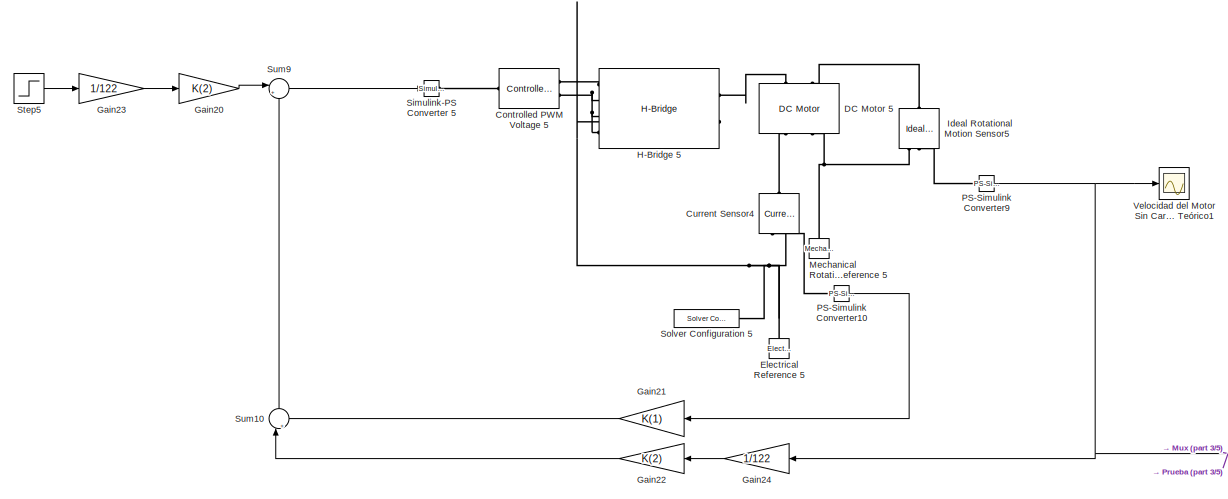
[diagram: root canvas - part 1/5, full width, top band]
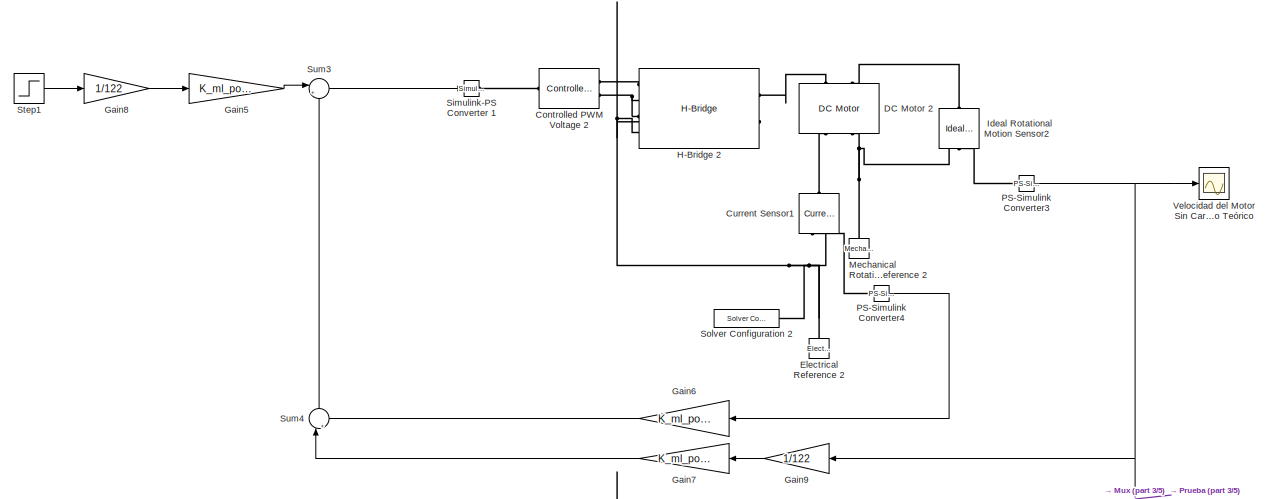
[diagram: root canvas - part 2/5, full width, top band]
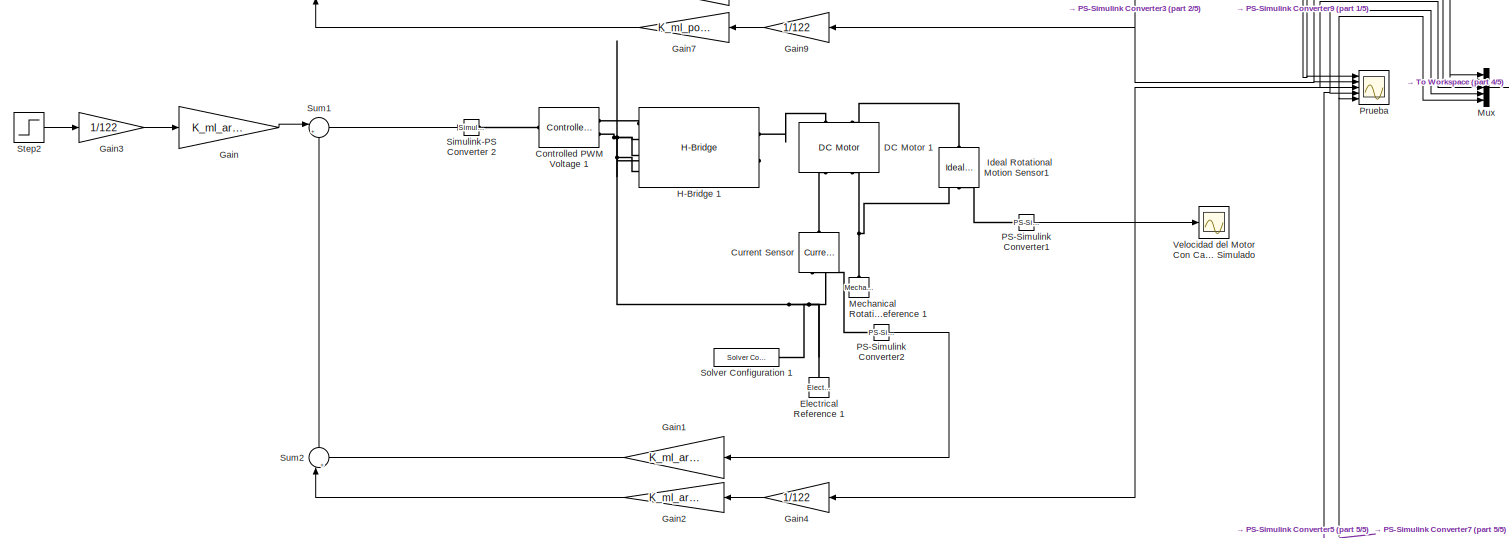
[diagram: root canvas - part 3/5, full width, middle band]
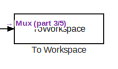
[diagram: root canvas - part 4/5, middle right region]
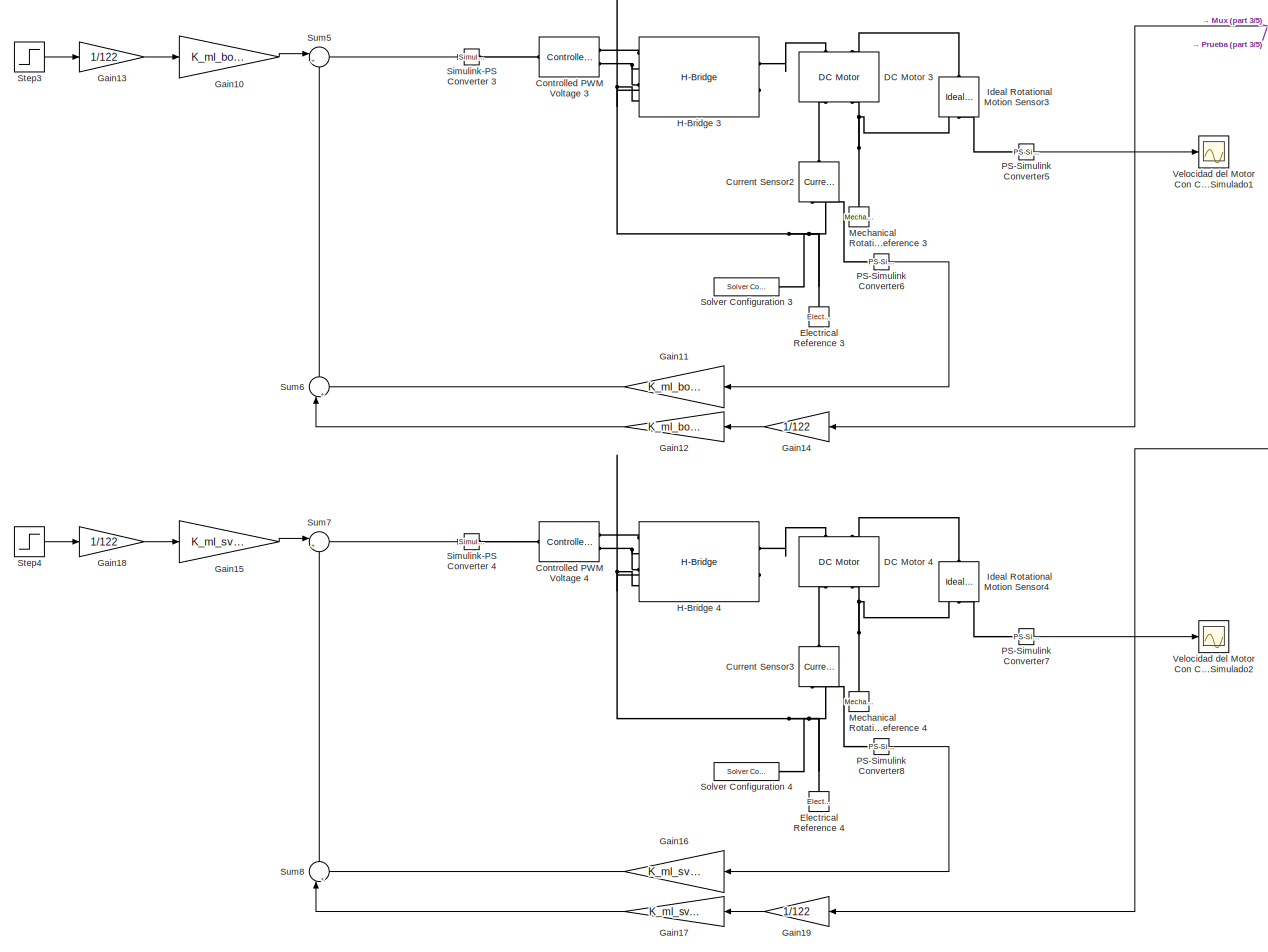
[diagram: root canvas - part 5/5, full width, bottom band]
MODEL slx_1609a7229509
KIND model
CONFIG AbsTol = auto
CONFIG EnableMultiTasking = off
CONFIG FixedStep = auto
CONFIG MaxStep = auto
CONFIG MinStep = auto
CONFIG RelTol = 1e-3
CONFIG SampleTimeConstraint = Unconstrained
CONFIG Solver = VariableStepAuto
CONFIG SolverName = VariableStepAuto
CONFIG StartTime = 0.0
CONFIG StopTime = 0.5
BLOCK [Reference]  Ideal Rotational Motion Sensor1  REF=fl_lib/Mechanical/Mechanical Sensors/Ideal Rotational
Motion Sensor
  NameLocation = right
  Ports = [0, 0, 0, 0, 0, 1, 3]
  SourceBlock = fl_lib/Mechanical/Mechanical Sensors/Ideal Rotational\nMotion Sensor
  SourceProductBaseCode = SS
  SourceType = Ideal Rotational\nMotion Sensor
BLOCK [Reference]  Ideal Rotational Motion Sensor2  REF=fl_lib/Mechanical/Mechanical Sensors/Ideal Rotational
Motion Sensor
  NameLocation = right
  Ports = [0, 0, 0, 0, 0, 1, 3]
  SourceBlock = fl_lib/Mechanical/Mechanical Sensors/Ideal Rotational\nMotion Sensor
  SourceProductBaseCode = SS
  SourceType = Ideal Rotational\nMotion Sensor
BLOCK [Reference]  Ideal Rotational Motion Sensor3  REF=fl_lib/Mechanical/Mechanical Sensors/Ideal Rotational
Motion Sensor
  NameLocation = right
  Ports = [0, 0, 0, 0, 0, 1, 3]
  SourceBlock = fl_lib/Mechanical/Mechanical Sensors/Ideal Rotational\nMotion Sensor
  SourceProductBaseCode = SS
  SourceType = Ideal Rotational\nMotion Sensor
BLOCK [Reference]  Ideal Rotational Motion Sensor4  REF=fl_lib/Mechanical/Mechanical Sensors/Ideal Rotational
Motion Sensor
  NameLocation = right
  Ports = [0, 0, 0, 0, 0, 1, 3]
  SourceBlock = fl_lib/Mechanical/Mechanical Sensors/Ideal Rotational\nMotion Sensor
  SourceProductBaseCode = SS
  SourceType = Ideal Rotational\nMotion Sensor
BLOCK [Reference]  Ideal Rotational Motion Sensor5  REF=fl_lib/Mechanical/Mechanical Sensors/Ideal Rotational
Motion Sensor
  NameLocation = right
  Ports = [0, 0, 0, 0, 0, 1, 3]
  SourceBlock = fl_lib/Mechanical/Mechanical Sensors/Ideal Rotational\nMotion Sensor
  SourceProductBaseCode = SS
  SourceType = Ideal Rotational\nMotion Sensor
BLOCK [Reference]  PS-Simulink Converter1  REF=nesl_utility/PS-Simulink
Converter
  Ports = [0, 1, 0, 0, 0, 1]
  SourceBlock = nesl_utility/PS-Simulink\nConverter
  SourceProductBaseCode = SS
  SourceType = PS-Simulink\nConverter
BLOCK [Reference]  PS-Simulink Converter10  REF=nesl_utility/PS-Simulink
Converter
  Ports = [0, 1, 0, 0, 0, 1]
  SourceBlock = nesl_utility/PS-Simulink\nConverter
  SourceProductBaseCode = SS
  SourceType = PS-Simulink\nConverter
BLOCK [Reference]  PS-Simulink Converter2  REF=nesl_utility/PS-Simulink
Converter
  Ports = [0, 1, 0, 0, 0, 1]
  SourceBlock = nesl_utility/PS-Simulink\nConverter
  SourceProductBaseCode = SS
  SourceType = PS-Simulink\nConverter
BLOCK [Reference]  PS-Simulink Converter3  REF=nesl_utility/PS-Simulink
Converter
  Ports = [0, 1, 0, 0, 0, 1]
  SourceBlock = nesl_utility/PS-Simulink\nConverter
  SourceProductBaseCode = SS
  SourceType = PS-Simulink\nConverter
BLOCK [Reference]  PS-Simulink Converter4  REF=nesl_utility/PS-Simulink
Converter
  Ports = [0, 1, 0, 0, 0, 1]
  SourceBlock = nesl_utility/PS-Simulink\nConverter
  SourceProductBaseCode = SS
  SourceType = PS-Simulink\nConverter
BLOCK [Reference]  PS-Simulink Converter5  REF=nesl_utility/PS-Simulink
Converter
  Ports = [0, 1, 0, 0, 0, 1]
  SourceBlock = nesl_utility/PS-Simulink\nConverter
  SourceProductBaseCode = SS
  SourceType = PS-Simulink\nConverter
BLOCK [Reference]  PS-Simulink Converter6  REF=nesl_utility/PS-Simulink
Converter
  Ports = [0, 1, 0, 0, 0, 1]
  SourceBlock = nesl_utility/PS-Simulink\nConverter
  SourceProductBaseCode = SS
  SourceType = PS-Simulink\nConverter
BLOCK [Reference]  PS-Simulink Converter7  REF=nesl_utility/PS-Simulink
Converter
  Ports = [0, 1, 0, 0, 0, 1]
  SourceBlock = nesl_utility/PS-Simulink\nConverter
  SourceProductBaseCode = SS
  SourceType = PS-Simulink\nConverter
BLOCK [Reference]  PS-Simulink Converter8  REF=nesl_utility/PS-Simulink
Converter
  Ports = [0, 1, 0, 0, 0, 1]
  SourceBlock = nesl_utility/PS-Simulink\nConverter
  SourceProductBaseCode = SS
  SourceType = PS-Simulink\nConverter
BLOCK [Reference]  PS-Simulink Converter9  REF=nesl_utility/PS-Simulink
Converter
  Ports = [0, 1, 0, 0, 0, 1]
  SourceBlock = nesl_utility/PS-Simulink\nConverter
  SourceProductBaseCode = SS
  SourceType = PS-Simulink\nConverter
BLOCK [Reference] Controlled PWM Voltage 1  REF=ee_lib/Integrated Circuits/Controlled PWM
Voltage
  Ports = [0, 0, 0, 0, 0, 1, 2]
  SourceBlock = ee_lib/Integrated Circuits/Controlled PWM\nVoltage
  SourceProductBaseCode = PS
  SourceType = Controlled PWM\nVoltage
BLOCK [Reference] Controlled PWM Voltage 2  REF=ee_lib/Integrated Circuits/Controlled PWM
Voltage
  Ports = [0, 0, 0, 0, 0, 1, 2]
  SourceBlock = ee_lib/Integrated Circuits/Controlled PWM\nVoltage
  SourceProductBaseCode = PS
  SourceType = Controlled PWM\nVoltage
BLOCK [Reference] Controlled PWM Voltage 3  REF=ee_lib/Integrated Circuits/Controlled PWM
Voltage
  Ports = [0, 0, 0, 0, 0, 1, 2]
  SourceBlock = ee_lib/Integrated Circuits/Controlled PWM\nVoltage
  SourceProductBaseCode = PS
  SourceType = Controlled PWM\nVoltage
BLOCK [Reference] Controlled PWM Voltage 4  REF=ee_lib/Integrated Circuits/Controlled PWM
Voltage
  Ports = [0, 0, 0, 0, 0, 1, 2]
  SourceBlock = ee_lib/Integrated Circuits/Controlled PWM\nVoltage
  SourceProductBaseCode = PS
  SourceType = Controlled PWM\nVoltage
BLOCK [Reference] Controlled PWM Voltage 5  REF=ee_lib/Integrated Circuits/Controlled PWM
Voltage
  Ports = [0, 0, 0, 0, 0, 1, 2]
  SourceBlock = ee_lib/Integrated Circuits/Controlled PWM\nVoltage
  SourceProductBaseCode = PS
  SourceType = Controlled PWM\nVoltage
BLOCK [Reference] Current Sensor  REF=fl_lib/Electrical/Electrical Sensors/Current Sensor
  NameLocation = left
  Ports = [0, 0, 0, 0, 0, 1, 2]
  SourceBlock = fl_lib/Electrical/Electrical Sensors/Current Sensor
  SourceProductBaseCode = SS
  SourceType = Current Sensor
BLOCK [Reference] Current Sensor1  REF=fl_lib/Electrical/Electrical Sensors/Current Sensor
  NameLocation = left
  Ports = [0, 0, 0, 0, 0, 1, 2]
  SourceBlock = fl_lib/Electrical/Electrical Sensors/Current Sensor
  SourceProductBaseCode = SS
  SourceType = Current Sensor
BLOCK [Reference] Current Sensor2  REF=fl_lib/Electrical/Electrical Sensors/Current Sensor
  NameLocation = left
  Ports = [0, 0, 0, 0, 0, 1, 2]
  SourceBlock = fl_lib/Electrical/Electrical Sensors/Current Sensor
  SourceProductBaseCode = SS
  SourceType = Current Sensor
BLOCK [Reference] Current Sensor3  REF=fl_lib/Electrical/Electrical Sensors/Current Sensor
  NameLocation = left
  Ports = [0, 0, 0, 0, 0, 1, 2]
  SourceBlock = fl_lib/Electrical/Electrical Sensors/Current Sensor
  SourceProductBaseCode = SS
  SourceType = Current Sensor
BLOCK [Reference] Current Sensor4  REF=fl_lib/Electrical/Electrical Sensors/Current Sensor
  NameLocation = left
  Ports = [0, 0, 0, 0, 0, 1, 2]
  SourceBlock = fl_lib/Electrical/Electrical Sensors/Current Sensor
  SourceProductBaseCode = SS
  SourceType = Current Sensor
BLOCK [Reference] DC Motor 1  REF=ee_lib/Electromechanical/Brushed Motors/DC Motor
  NameLocation = right
  Ports = [0, 0, 0, 0, 0, 2, 2]
  SourceBlock = ee_lib/Electromechanical/Brushed Motors/DC Motor
  SourceProductBaseCode = PS
  SourceType = DC Motor
BLOCK [Reference] DC Motor 2  REF=ee_lib/Electromechanical/Brushed Motors/DC Motor
  NameLocation = right
  Ports = [0, 0, 0, 0, 0, 2, 2]
  SourceBlock = ee_lib/Electromechanical/Brushed Motors/DC Motor
  SourceProductBaseCode = PS
  SourceType = DC Motor
BLOCK [Reference] DC Motor 3  REF=ee_lib/Electromechanical/Brushed Motors/DC Motor
  NameLocation = right
  Ports = [0, 0, 0, 0, 0, 2, 2]
  SourceBlock = ee_lib/Electromechanical/Brushed Motors/DC Motor
  SourceProductBaseCode = PS
  SourceType = DC Motor
BLOCK [Reference] DC Motor 4  REF=ee_lib/Electromechanical/Brushed Motors/DC Motor
  NameLocation = right
  Ports = [0, 0, 0, 0, 0, 2, 2]
  SourceBlock = ee_lib/Electromechanical/Brushed Motors/DC Motor
  SourceProductBaseCode = PS
  SourceType = DC Motor
BLOCK [Reference] DC Motor 5  REF=ee_lib/Electromechanical/Brushed Motors/DC Motor
  NameLocation = right
  Ports = [0, 0, 0, 0, 0, 2, 2]
  SourceBlock = ee_lib/Electromechanical/Brushed Motors/DC Motor
  SourceProductBaseCode = PS
  SourceType = DC Motor
BLOCK [Reference] Electrical Reference 1  REF=fl_lib/Electrical/Electrical Elements/Electrical Reference
  Ports = [0, 0, 0, 0, 0, 1]
  SourceBlock = fl_lib/Electrical/Electrical Elements/Electrical Reference
  SourceProductBaseCode = MT,SS
  SourceType = Electrical Reference
BLOCK [Reference] Electrical Reference 2  REF=fl_lib/Electrical/Electrical Elements/Electrical Reference
  Ports = [0, 0, 0, 0, 0, 1]
  SourceBlock = fl_lib/Electrical/Electrical Elements/Electrical Reference
  SourceProductBaseCode = MT,SS
  SourceType = Electrical Reference
BLOCK [Reference] Electrical Reference 3  REF=fl_lib/Electrical/Electrical Elements/Electrical Reference
  Ports = [0, 0, 0, 0, 0, 1]
  SourceBlock = fl_lib/Electrical/Electrical Elements/Electrical Reference
  SourceProductBaseCode = MT,SS
  SourceType = Electrical Reference
BLOCK [Reference] Electrical Reference 4  REF=fl_lib/Electrical/Electrical Elements/Electrical Reference
  Ports = [0, 0, 0, 0, 0, 1]
  SourceBlock = fl_lib/Electrical/Electrical Elements/Electrical Reference
  SourceProductBaseCode = MT,SS
  SourceType = Electrical Reference
BLOCK [Reference] Electrical Reference 5  REF=fl_lib/Electrical/Electrical Elements/Electrical Reference
  Ports = [0, 0, 0, 0, 0, 1]
  SourceBlock = fl_lib/Electrical/Electrical Elements/Electrical Reference
  SourceProductBaseCode = MT,SS
  SourceType = Electrical Reference
BLOCK [Gain] Gain
  Gain = K_ml_arb(2)
BLOCK [Gain] Gain1
  Gain = K_ml_arb(1)
BLOCK [Gain] Gain10
  Gain = K_ml_bos(2)
BLOCK [Gain] Gain11
  Gain = K_ml_bos(1)
BLOCK [Gain] Gain12
  Gain = K_ml_bos(2)
BLOCK [Gain] Gain13
  Gain = 1/122
BLOCK [Gain] Gain14
  Gain = 1/122
BLOCK [Gain] Gain15
  Gain = K_ml_svr(2)
BLOCK [Gain] Gain16
  Gain = K_ml_svr(1)
BLOCK [Gain] Gain17
  Gain = K_ml_svr(2)
BLOCK [Gain] Gain18
  Gain = 1/122
BLOCK [Gain] Gain19
  Gain = 1/122
BLOCK [Gain] Gain2
  Gain = K_ml_arb(2)
BLOCK [Gain] Gain20
  Gain = K(2)
BLOCK [Gain] Gain21
  Gain = K(1)
BLOCK [Gain] Gain22
  Gain = K(2)
BLOCK [Gain] Gain23
  Gain = 1/122
BLOCK [Gain] Gain24
  Gain = 1/122
BLOCK [Gain] Gain3
  Gain = 1/122
BLOCK [Gain] Gain4
  Gain = 1/122
BLOCK [Gain] Gain5
  Gain = K_ml_pol(2)
BLOCK [Gain] Gain6
  Gain = K_ml_pol(1)
BLOCK [Gain] Gain7
  Gain = K_ml_pol(2)
BLOCK [Gain] Gain8
  Gain = 1/122
BLOCK [Gain] Gain9
  Gain = 1/122
BLOCK [Reference] H-Bridge 1  REF=ee_lib/Semiconductors &
Converters/Converters/H-Bridge
  Ports = [0, 0, 0, 0, 0, 4, 2]
  SourceBlock = ee_lib/Semiconductors &\nConverters/Converters/H-Bridge
  SourceProductBaseCode = PS
  SourceType = H-Bridge
BLOCK [Reference] H-Bridge 2  REF=ee_lib/Semiconductors &
Converters/Converters/H-Bridge
  Ports = [0, 0, 0, 0, 0, 4, 2]
  SourceBlock = ee_lib/Semiconductors &\nConverters/Converters/H-Bridge
  SourceProductBaseCode = PS
  SourceType = H-Bridge
BLOCK [Reference] H-Bridge 3  REF=ee_lib/Semiconductors &
Converters/Converters/H-Bridge
  Ports = [0, 0, 0, 0, 0, 4, 2]
  SourceBlock = ee_lib/Semiconductors &\nConverters/Converters/H-Bridge
  SourceProductBaseCode = PS
  SourceType = H-Bridge
BLOCK [Reference] H-Bridge 4  REF=ee_lib/Semiconductors &
Converters/Converters/H-Bridge
  Ports = [0, 0, 0, 0, 0, 4, 2]
  SourceBlock = ee_lib/Semiconductors &\nConverters/Converters/H-Bridge
  SourceProductBaseCode = PS
  SourceType = H-Bridge
BLOCK [Reference] H-Bridge 5  REF=ee_lib/Semiconductors &
Converters/Converters/H-Bridge
  Ports = [0, 0, 0, 0, 0, 4, 2]
  SourceBlock = ee_lib/Semiconductors &\nConverters/Converters/H-Bridge
  SourceProductBaseCode = PS
  SourceType = H-Bridge
BLOCK [Reference] Mechanical Rotational Reference 1  REF=fl_lib/Mechanical/Rotational Elements/Mechanical
Rotational Reference
  NameLocation = right
  Ports = [0, 0, 0, 0, 0, 1]
  SourceBlock = fl_lib/Mechanical/Rotational Elements/Mechanical\nRotational Reference
  SourceProductBaseCode = SS
  SourceType = Mechanical\nRotational Reference
BLOCK [Reference] Mechanical Rotational Reference 2  REF=fl_lib/Mechanical/Rotational Elements/Mechanical
Rotational Reference
  NameLocation = right
  Ports = [0, 0, 0, 0, 0, 1]
  SourceBlock = fl_lib/Mechanical/Rotational Elements/Mechanical\nRotational Reference
  SourceProductBaseCode = SS
  SourceType = Mechanical\nRotational Reference
BLOCK [Reference] Mechanical Rotational Reference 3  REF=fl_lib/Mechanical/Rotational Elements/Mechanical
Rotational Reference
  NameLocation = right
  Ports = [0, 0, 0, 0, 0, 1]
  SourceBlock = fl_lib/Mechanical/Rotational Elements/Mechanical\nRotational Reference
  SourceProductBaseCode = SS
  SourceType = Mechanical\nRotational Reference
BLOCK [Reference] Mechanical Rotational Reference 4  REF=fl_lib/Mechanical/Rotational Elements/Mechanical
Rotational Reference
  NameLocation = right
  Ports = [0, 0, 0, 0, 0, 1]
  SourceBlock = fl_lib/Mechanical/Rotational Elements/Mechanical\nRotational Reference
  SourceProductBaseCode = SS
  SourceType = Mechanical\nRotational Reference
BLOCK [Reference] Mechanical Rotational Reference 5  REF=fl_lib/Mechanical/Rotational Elements/Mechanical
Rotational Reference
  NameLocation = right
  Ports = [0, 0, 0, 0, 0, 1]
  SourceBlock = fl_lib/Mechanical/Rotational Elements/Mechanical\nRotational Reference
  SourceProductBaseCode = SS
  SourceType = Mechanical\nRotational Reference
BLOCK [Mux] Mux
  DisplayOption = bar
  Inputs = 5
  Ports = [5, 1]
BLOCK [Scope] Prueba
  Floating = off
  NumInputPorts = 5
  Ports = [5]
  ScopeSpecificationString = Simulink.scopes.TimeScopeBlockCfg('CurrentConfiguration', extmgr.ConfigurationSet(extmgr.Configuration('Core','General UI',true),extmgr.Configuration('Core','Source UI',true),extmgr.Configuration('Sources','WiredSimulink',true,'DataLoggingVariableName','ScopeData1'),extmgr.Configuration('Visuals','Time Domain',true,'SerializedDisplays',{struct('MinYLimReal','-6.47422','MaxYLimReal','58.26796','YLa...<+1878ch>
BLOCK [Reference] Simulink-PS Converter 1  REF=nesl_utility/Simulink-PS
Converter
  Ports = [1, 0, 0, 0, 0, 0, 1]
  SourceBlock = nesl_utility/Simulink-PS\nConverter
  SourceProductBaseCode = SS
  SourceType = Simulink-PS\nConverter
BLOCK [Reference] Simulink-PS Converter 2  REF=nesl_utility/Simulink-PS
Converter
  Ports = [1, 0, 0, 0, 0, 0, 1]
  SourceBlock = nesl_utility/Simulink-PS\nConverter
  SourceProductBaseCode = SS
  SourceType = Simulink-PS\nConverter
BLOCK [Reference] Simulink-PS Converter 3  REF=nesl_utility/Simulink-PS
Converter
  Ports = [1, 0, 0, 0, 0, 0, 1]
  SourceBlock = nesl_utility/Simulink-PS\nConverter
  SourceProductBaseCode = SS
  SourceType = Simulink-PS\nConverter
BLOCK [Reference] Simulink-PS Converter 4  REF=nesl_utility/Simulink-PS
Converter
  Ports = [1, 0, 0, 0, 0, 0, 1]
  SourceBlock = nesl_utility/Simulink-PS\nConverter
  SourceProductBaseCode = SS
  SourceType = Simulink-PS\nConverter
BLOCK [Reference] Simulink-PS Converter 5  REF=nesl_utility/Simulink-PS
Converter
  Ports = [1, 0, 0, 0, 0, 0, 1]
  SourceBlock = nesl_utility/Simulink-PS\nConverter
  SourceProductBaseCode = SS
  SourceType = Simulink-PS\nConverter
BLOCK [Reference] Solver Configuration 1  REF=nesl_utility/Solver
Configuration
  Ports = [0, 0, 0, 0, 0, 0, 1]
  SourceBlock = nesl_utility/Solver\nConfiguration
  SourceProductBaseCode = SS
  SourceType = Solver\nConfiguration
BLOCK [Reference] Solver Configuration 2  REF=nesl_utility/Solver
Configuration
  Ports = [0, 0, 0, 0, 0, 0, 1]
  SourceBlock = nesl_utility/Solver\nConfiguration
  SourceProductBaseCode = SS
  SourceType = Solver\nConfiguration
BLOCK [Reference] Solver Configuration 3  REF=nesl_utility/Solver
Configuration
  Ports = [0, 0, 0, 0, 0, 0, 1]
  SourceBlock = nesl_utility/Solver\nConfiguration
  SourceProductBaseCode = SS
  SourceType = Solver\nConfiguration
BLOCK [Reference] Solver Configuration 4  REF=nesl_utility/Solver
Configuration
  Ports = [0, 0, 0, 0, 0, 0, 1]
  SourceBlock = nesl_utility/Solver\nConfiguration
  SourceProductBaseCode = SS
  SourceType = Solver\nConfiguration
BLOCK [Reference] Solver Configuration 5  REF=nesl_utility/Solver
Configuration
  Ports = [0, 0, 0, 0, 0, 0, 1]
  SourceBlock = nesl_utility/Solver\nConfiguration
  SourceProductBaseCode = SS
  SourceType = Solver\nConfiguration
BLOCK [Step] Step1
  After = 52.46
  SampleTime = 0
  Time = 0
BLOCK [Step] Step2
  After = 52.46
  SampleTime = 0
  Time = 0
BLOCK [Step] Step3
  After = 52.46
  SampleTime = 0
  Time = 0
BLOCK [Step] Step4
  After = 52.46
  SampleTime = 0
  Time = 0
BLOCK [Step] Step5
  After = 52.46
  SampleTime = 0
  Time = 0
BLOCK [Sum] Sum1
  Inputs = |+-
  Ports = [2, 1]
BLOCK [Sum] Sum10
  Inputs = |++
  NameLocation = left
  Ports = [2, 1]
BLOCK [Sum] Sum2
  Inputs = |++
  NameLocation = left
  Ports = [2, 1]
BLOCK [Sum] Sum3
  Inputs = |+-
  Ports = [2, 1]
BLOCK [Sum] Sum4
  Inputs = |++
  NameLocation = left
  Ports = [2, 1]
BLOCK [Sum] Sum5
  Inputs = |+-
  Ports = [2, 1]
BLOCK [Sum] Sum6
  Inputs = |++
  NameLocation = left
  Ports = [2, 1]
BLOCK [Sum] Sum7
  Inputs = |+-
  Ports = [2, 1]
BLOCK [Sum] Sum8
  Inputs = |++
  NameLocation = left
  Ports = [2, 1]
BLOCK [Sum] Sum9
  Inputs = |+-
  Ports = [2, 1]
BLOCK [ToWorkspace] To Workspace
  FixptAsFi = on
  MaxDataPoints = inf
  Ports = [1]
  SampleTime = 0.00001
  SaveFormat = Timeseries
  VariableName = pruebas
BLOCK [Scope] Velocidad del Motor Con Carga Controlado Simulado
  Floating = off
  NumInputPorts = 1
  Ports = [1]
  ScopeSpecificationString = Simulink.scopes.TimeScopeBlockCfg('CurrentConfiguration', extmgr.ConfigurationSet(extmgr.Configuration('Core','General UI',true),extmgr.Configuration('Core','Source UI',true),extmgr.Configuration('Sources','WiredSimulink',true,'DataLoggingVariableName','ScopeData3'),extmgr.Configuration('Visuals','Time Domain',true,'SerializedDisplays',{struct('MinYLimReal','-7.26688','MaxYLimReal','75.2204','YLab...<+1685ch>
BLOCK [Scope] Velocidad del Motor Con Carga Controlado Simulado1
  Floating = off
  NumInputPorts = 1
  Ports = [1]
  ScopeSpecificationString = Simulink.scopes.TimeScopeBlockCfg('CurrentConfiguration', extmgr.ConfigurationSet(extmgr.Configuration('Core','General UI',true),extmgr.Configuration('Core','Source UI',true),extmgr.Configuration('Sources','WiredSimulink',true,'DataLoggingVariableName','ScopeData1'),extmgr.Configuration('Visuals','Time Domain',true,'SerializedDisplays',{struct('MinYLimReal','-7.26688','MaxYLimReal','75.2204','YLab...<+1685ch>
BLOCK [Scope] Velocidad del Motor Con Carga Controlado Simulado2
  Floating = off
  NumInputPorts = 1
  Ports = [1]
  ScopeSpecificationString = Simulink.scopes.TimeScopeBlockCfg('CurrentConfiguration', extmgr.ConfigurationSet(extmgr.Configuration('Core','General UI',true),extmgr.Configuration('Core','Source UI',true),extmgr.Configuration('Sources','WiredSimulink',true,'DataLoggingVariableName','ScopeData2'),extmgr.Configuration('Visuals','Time Domain',true,'SerializedDisplays',{struct('MinYLimReal','-7.26688','MaxYLimReal','75.2204','YLab...<+1685ch>
BLOCK [Scope] Velocidad del Motor Sin Carga Controlado Teórico
  Floating = off
  NumInputPorts = 1
  Ports = [1]
  ScopeSpecificationString = Simulink.scopes.TimeScopeBlockCfg('CurrentConfiguration', extmgr.ConfigurationSet(extmgr.Configuration('Core','General UI',true),extmgr.Configuration('Core','Source UI',true),extmgr.Configuration('Sources','WiredSimulink',true,'DataLoggingVariableName','ScopeData2'),extmgr.Configuration('Visuals','Time Domain',true,'SerializedDisplays',{struct('MinYLimReal','-7.26688','MaxYLimReal','75.2204','YLab...<+1685ch>
BLOCK [Scope] Velocidad del Motor Sin Carga Controlado Teórico1
  Floating = off
  NumInputPorts = 1
  Ports = [1]
  ScopeSpecificationString = Simulink.scopes.TimeScopeBlockCfg('CurrentConfiguration', extmgr.ConfigurationSet(extmgr.Configuration('Core','General UI',true),extmgr.Configuration('Core','Source UI',true),extmgr.Configuration('Sources','WiredSimulink',true,'DataLoggingVariableName','ScopeData3'),extmgr.Configuration('Visuals','Time Domain',true,'SerializedDisplays',{struct('MinYLimReal','-7.26688','MaxYLimReal','75.2204','YLab...<+1685ch>
LINE  PS-Simulink Converter10:1 -> Gain21:1
NET  PS-Simulink Converter1:1 -> Gain4:1, Mux:3, Prueba:3, Velocidad del Motor Con Carga Controlado Simulado:1
LINE  PS-Simulink Converter2:1 -> Gain1:1
NET  PS-Simulink Converter3:1 -> Gain9:1, Mux:2, Prueba:2, Velocidad del Motor Sin Carga Controlado Teórico:1
LINE  PS-Simulink Converter4:1 -> Gain6:1
NET  PS-Simulink Converter5:1 -> Gain14:1, Mux:4, Prueba:4, Velocidad del Motor Con Carga Controlado Simulado1:1
LINE  PS-Simulink Converter6:1 -> Gain11:1
NET  PS-Simulink Converter7:1 -> Gain19:1, Mux:5, Prueba:5, Velocidad del Motor Con Carga Controlado Simulado2:1
LINE  PS-Simulink Converter8:1 -> Gain16:1
NET  PS-Simulink Converter9:1 -> Gain24:1, Mux:1, Prueba:1, Velocidad del Motor Sin Carga Controlado Teórico1:1
LINE Gain10:1 -> Sum5:1
LINE Gain11:1 -> Sum6:2
LINE Gain12:1 -> Sum6:1
LINE Gain13:1 -> Gain10:1
LINE Gain14:1 -> Gain12:1
LINE Gain15:1 -> Sum7:1
LINE Gain16:1 -> Sum8:2
LINE Gain17:1 -> Sum8:1
LINE Gain18:1 -> Gain15:1
LINE Gain19:1 -> Gain17:1
LINE Gain1:1 -> Sum2:2
LINE Gain20:1 -> Sum9:1
LINE Gain21:1 -> Sum10:2
LINE Gain22:1 -> Sum10:1
LINE Gain23:1 -> Gain20:1
LINE Gain24:1 -> Gain22:1
LINE Gain2:1 -> Sum2:1
LINE Gain3:1 -> Gain:1
LINE Gain4:1 -> Gain2:1
LINE Gain5:1 -> Sum3:1
LINE Gain6:1 -> Sum4:2
LINE Gain7:1 -> Sum4:1
LINE Gain8:1 -> Gain5:1
LINE Gain9:1 -> Gain7:1
LINE Gain:1 -> Sum1:1
LINE Mux:1 -> To Workspace:1
LINE Step1:1 -> Gain8:1
LINE Step2:1 -> Gain3:1
LINE Step3:1 -> Gain13:1
LINE Step4:1 -> Gain18:1
LINE Step5:1 -> Gain23:1
LINE Sum10:1 -> Sum9:2
LINE Sum1:1 -> Simulink-PS Converter 2:1
LINE Sum2:1 -> Sum1:2
LINE Sum3:1 -> Simulink-PS Converter 1:1
LINE Sum4:1 -> Sum3:2
LINE Sum5:1 -> Simulink-PS Converter 3:1
LINE Sum6:1 -> Sum5:2
LINE Sum7:1 -> Simulink-PS Converter 4:1
LINE Sum8:1 -> Sum7:2
LINE Sum9:1 -> Simulink-PS Converter 5:1
PLINE  Ideal Rotational Motion Sensor1:LConn1 -- DC Motor 1:LConn2
PNET net1:  Ideal Rotational Motion Sensor1:RConn1 -- DC Motor 1:RConn2 -- Mechanical Rotational Reference 1:LConn1
PLINE  Ideal Rotational Motion Sensor1:RConn2 --  PS-Simulink Converter1:LConn1
PLINE  Ideal Rotational Motion Sensor2:LConn1 -- DC Motor 2:LConn2
PNET net2:  Ideal Rotational Motion Sensor2:RConn1 -- DC Motor 2:RConn2 -- Mechanical Rotational Reference 2:LConn1
PLINE  Ideal Rotational Motion Sensor2:RConn2 --  PS-Simulink Converter3:LConn1
PLINE  Ideal Rotational Motion Sensor3:LConn1 -- DC Motor 3:LConn2
PNET net3:  Ideal Rotational Motion Sensor3:RConn1 -- DC Motor 3:RConn2 -- Mechanical Rotational Reference 3:LConn1
PLINE  Ideal Rotational Motion Sensor3:RConn2 --  PS-Simulink Converter5:LConn1
PLINE  Ideal Rotational Motion Sensor4:LConn1 -- DC Motor 4:LConn2
PNET net4:  Ideal Rotational Motion Sensor4:RConn1 -- DC Motor 4:RConn2 -- Mechanical Rotational Reference 4:LConn1
PLINE  Ideal Rotational Motion Sensor4:RConn2 --  PS-Simulink Converter7:LConn1
PLINE  Ideal Rotational Motion Sensor5:LConn1 -- DC Motor 5:LConn2
PNET net5:  Ideal Rotational Motion Sensor5:RConn1 -- DC Motor 5:RConn2 -- Mechanical Rotational Reference 5:LConn1
PLINE  Ideal Rotational Motion Sensor5:RConn2 --  PS-Simulink Converter9:LConn1
PLINE  PS-Simulink Converter10:LConn1 -- Current Sensor4:RConn1
PLINE  PS-Simulink Converter2:LConn1 -- Current Sensor:RConn1
PLINE  PS-Simulink Converter4:LConn1 -- Current Sensor1:RConn1
PLINE  PS-Simulink Converter6:LConn1 -- Current Sensor2:RConn1
PLINE  PS-Simulink Converter8:LConn1 -- Current Sensor3:RConn1
PLINE Controlled PWM Voltage 1:LConn1 -- Simulink-PS Converter 2:RConn1
PLINE Controlled PWM Voltage 1:RConn1 -- H-Bridge 1:LConn1
PNET net6: Controlled PWM Voltage 1:RConn2 -- Current Sensor:RConn2 -- Electrical Reference 1:LConn1 -- H-Bridge 1:LConn2 -- H-Bridge 1:LConn3 -- H-Bridge 1:LConn4 -- H-Bridge 1:RConn2 -- Solver Configuration 1:RConn1
PLINE Controlled PWM Voltage 2:LConn1 -- Simulink-PS Converter 1:RConn1
PLINE Controlled PWM Voltage 2:RConn1 -- H-Bridge 2:LConn1
PNET net7: Controlled PWM Voltage 2:RConn2 -- Current Sensor1:RConn2 -- Electrical Reference 2:LConn1 -- H-Bridge 2:LConn2 -- H-Bridge 2:LConn3 -- H-Bridge 2:LConn4 -- H-Bridge 2:RConn2 -- Solver Configuration 2:RConn1
PLINE Controlled PWM Voltage 3:LConn1 -- Simulink-PS Converter 3:RConn1
PLINE Controlled PWM Voltage 3:RConn1 -- H-Bridge 3:LConn1
PNET net8: Controlled PWM Voltage 3:RConn2 -- Current Sensor2:RConn2 -- Electrical Reference 3:LConn1 -- H-Bridge 3:LConn2 -- H-Bridge 3:LConn3 -- H-Bridge 3:LConn4 -- H-Bridge 3:RConn2 -- Solver Configuration 3:RConn1
PLINE Controlled PWM Voltage 4:LConn1 -- Simulink-PS Converter 4:RConn1
PLINE Controlled PWM Voltage 4:RConn1 -- H-Bridge 4:LConn1
PNET net9: Controlled PWM Voltage 4:RConn2 -- Current Sensor3:RConn2 -- Electrical Reference 4:LConn1 -- H-Bridge 4:LConn2 -- H-Bridge 4:LConn3 -- H-Bridge 4:LConn4 -- H-Bridge 4:RConn2 -- Solver Configuration 4:RConn1
PLINE Controlled PWM Voltage 5:LConn1 -- Simulink-PS Converter 5:RConn1
PLINE Controlled PWM Voltage 5:RConn1 -- H-Bridge 5:LConn1
PNET net10: Controlled PWM Voltage 5:RConn2 -- Current Sensor4:RConn2 -- Electrical Reference 5:LConn1 -- H-Bridge 5:LConn2 -- H-Bridge 5:LConn3 -- H-Bridge 5:LConn4 -- H-Bridge 5:RConn2 -- Solver Configuration 5:RConn1
PLINE Current Sensor1:LConn1 -- DC Motor 2:RConn1
PLINE Current Sensor2:LConn1 -- DC Motor 3:RConn1
PLINE Current Sensor3:LConn1 -- DC Motor 4:RConn1
PLINE Current Sensor4:LConn1 -- DC Motor 5:RConn1
PLINE Current Sensor:LConn1 -- DC Motor 1:RConn1
PLINE DC Motor 1:LConn1 -- H-Bridge 1:RConn1
PLINE DC Motor 2:LConn1 -- H-Bridge 2:RConn1
PLINE DC Motor 3:LConn1 -- H-Bridge 3:RConn1
PLINE DC Motor 4:LConn1 -- H-Bridge 4:RConn1
PLINE DC Motor 5:LConn1 -- H-Bridge 5:RConn1
note: NET lines group one-source signal fan-out (src -> all destinations, sorted); 1:1 wires keep LINE; PNET lines group multi-terminal physical nets as a canonical sorted terminal list (undirected conserving connections); 2-terminal nets keep the pairwise PLINE form
